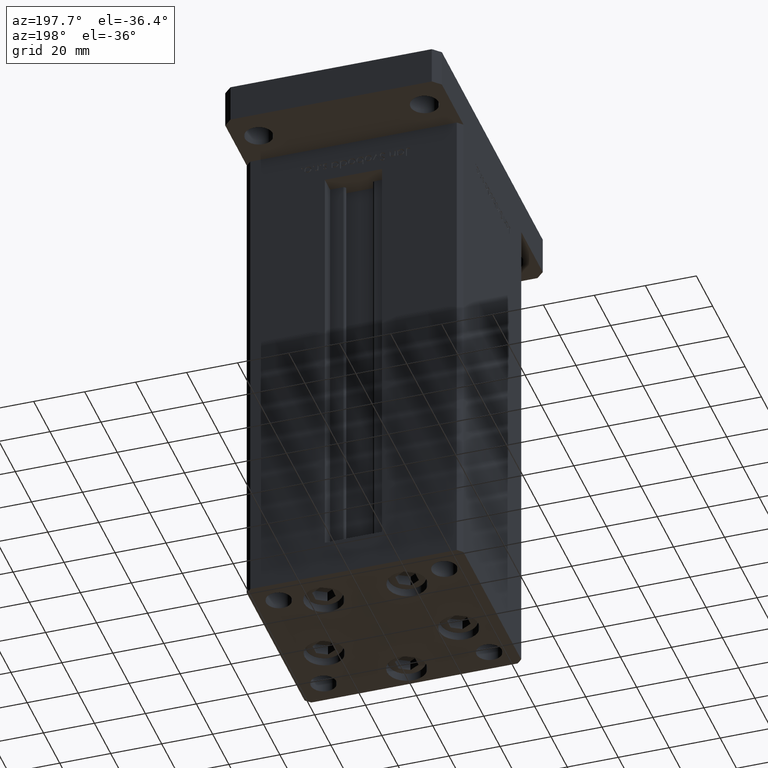
[diagram: clean part render]
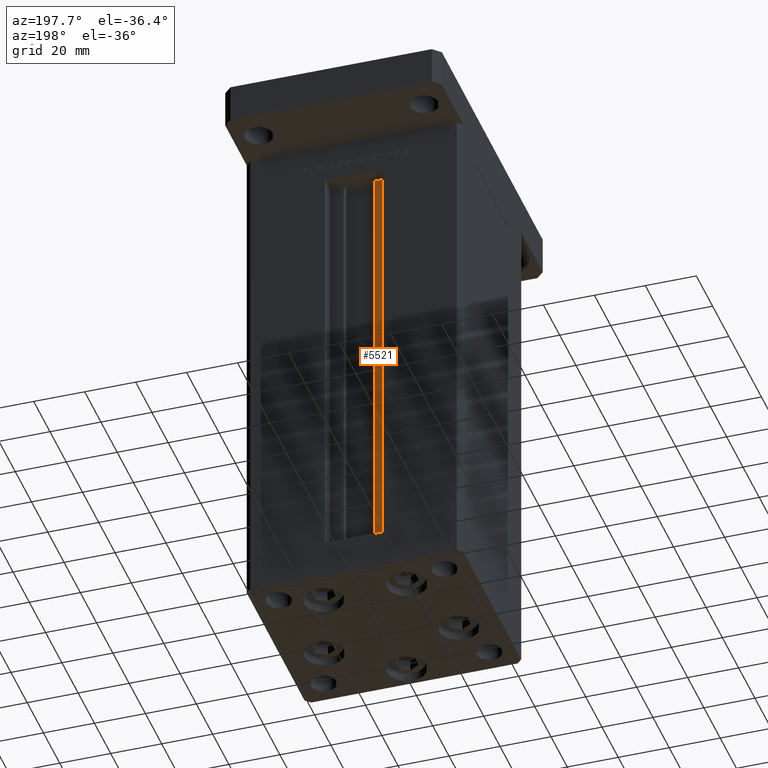
[diagram: same view with one face highlighted and labeled with its STEP entity id]
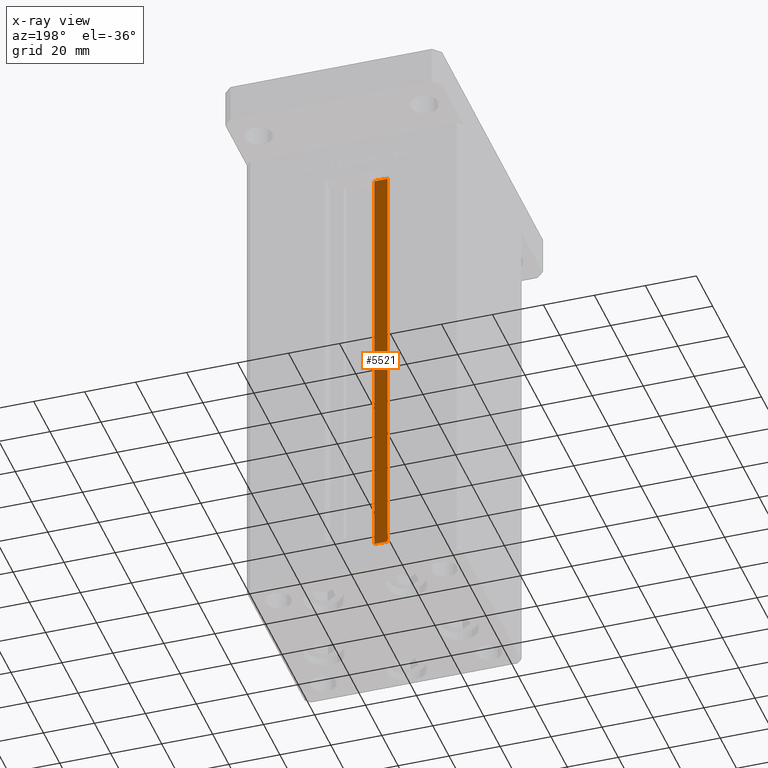
[diagram: x-ray of the same camera — body ghosted, the highlighted face saturated]
A machine part, auxiliary view. The second image highlights one B-rep face of the part: STEP entity #5521.
The next image is the same camera in x-ray: the body ghosted, the highlighted face saturated — about 0% of this face is hidden behind the body in this view.
In plain terms, the highlighted planar face has unit normal (0, -1, 0).
Its self-contained STEP definition (entity closure, byte-faithful):
#856 = VECTOR ( 'NONE', #39886, 1000.000000000000000 ) ;
#2965 = DIRECTION ( 'NONE',  ( -1.000000000000000000, 0.000000000000000000, 0.000000000000000000 ) ) ;
#3941 = AXIS2_PLACEMENT_3D ( 'NONE', #13166, #12368, #16968 ) ;
#4049 = ORIENTED_EDGE ( 'NONE', *, *, #37193, .F. ) ;
#5247 = VERTEX_POINT ( 'NONE', #52511 ) ;
#5521 = ADVANCED_FACE ( 'NONE', ( #49504 ), #25652, .F. ) ;
#7717 = CARTESIAN_POINT ( 'NONE',  ( -6.183333333333999704, 30.99999999999999289, 168.5000000000000000 ) ) ;
#8428 = VECTOR ( 'NONE', #2965, 1000.000000000000000 ) ;
#9164 = EDGE_CURVE ( 'NONE', #22619, #51864, #21073, .T. ) ;
#10103 = VECTOR ( 'NONE', #49280, 1000.000000000000000 ) ;
#10609 = CARTESIAN_POINT ( 'NONE',  ( -6.183333333333999704, 30.99999999999999289, 0.000000000000000000 ) ) ;
#11306 = EDGE_CURVE ( 'NONE', #44495, #5247, #20028, .T. ) ;
#11545 = CARTESIAN_POINT ( 'NONE',  ( -11.25000000000000000, 30.99999999999999289, 0.000000000000000000 ) ) ;
#11982 = ORIENTED_EDGE ( 'NONE', *, *, #11306, .T. ) ;
#12245 = ORIENTED_EDGE ( 'NONE', *, *, #9164, .F. ) ;
#12368 = DIRECTION ( 'NONE',  ( 0.000000000000000000, -1.000000000000000000, -0.000000000000000000 ) ) ;
#13166 = CARTESIAN_POINT ( 'NONE',  ( -6.183333333333999704, 30.99999999999999289, 0.000000000000000000 ) ) ;
#15431 = VECTOR ( 'NONE', #36300, 1000.000000000000000 ) ;
#15472 = CARTESIAN_POINT ( 'NONE',  ( -6.183333333333999704, 30.99999999999999289, 0.000000000000000000 ) ) ;
#16968 = DIRECTION ( 'NONE',  ( 0.000000000000000000, 0.000000000000000000, -1.000000000000000000 ) ) ;
#19228 = EDGE_LOOP ( 'NONE', ( #12245, #4049, #11982, #40389 ) ) ;
#20028 = LINE ( 'NONE', #28441, #15431 ) ;
#21073 = LINE ( 'NONE', #24882, #10103 ) ;
#22619 = VERTEX_POINT ( 'NONE', #15472 ) ;
#24130 = EDGE_CURVE ( 'NONE', #51864, #5247, #44714, .T. ) ;
#24882 = CARTESIAN_POINT ( 'NONE',  ( -6.183333333333999704, 30.99999999999999289, 0.000000000000000000 ) ) ;
#25652 = PLANE ( 'NONE',  #3941 ) ;
#28441 = CARTESIAN_POINT ( 'NONE',  ( -11.25000000000000000, 30.99999999999999289, 0.000000000000000000 ) ) ;
#36062 = CARTESIAN_POINT ( 'NONE',  ( 0.000000000000000000, 30.99999999999999289, 168.5000000000000000 ) ) ;
#36300 = DIRECTION ( 'NONE',  ( -0.000000000000000000, -0.000000000000000000, 1.000000000000000000 ) ) ;
#37193 = EDGE_CURVE ( 'NONE', #44495, #22619, #51827, .T. ) ;
#39886 = DIRECTION ( 'NONE',  ( 1.000000000000000000, -0.000000000000000000, -0.000000000000000000 ) ) ;
#40389 = ORIENTED_EDGE ( 'NONE', *, *, #24130, .F. ) ;
#44495 = VERTEX_POINT ( 'NONE', #11545 ) ;
#44714 = LINE ( 'NONE', #36062, #8428 ) ;
#49280 = DIRECTION ( 'NONE',  ( -0.000000000000000000, -0.000000000000000000, 1.000000000000000000 ) ) ;
#49504 = FACE_OUTER_BOUND ( 'NONE', #19228, .T. ) ;
#51827 = LINE ( 'NONE', #10609, #856 ) ;
#51864 = VERTEX_POINT ( 'NONE', #7717 ) ;
#52511 = CARTESIAN_POINT ( 'NONE',  ( -11.25000000000000000, 30.99999999999999289, 168.5000000000000000 ) ) ;